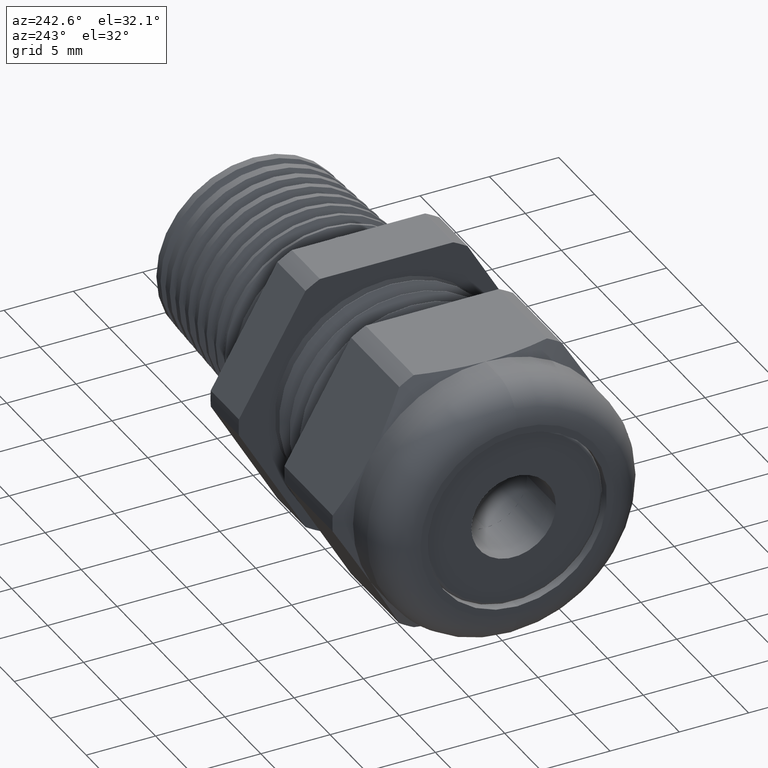
[diagram: clean part render]
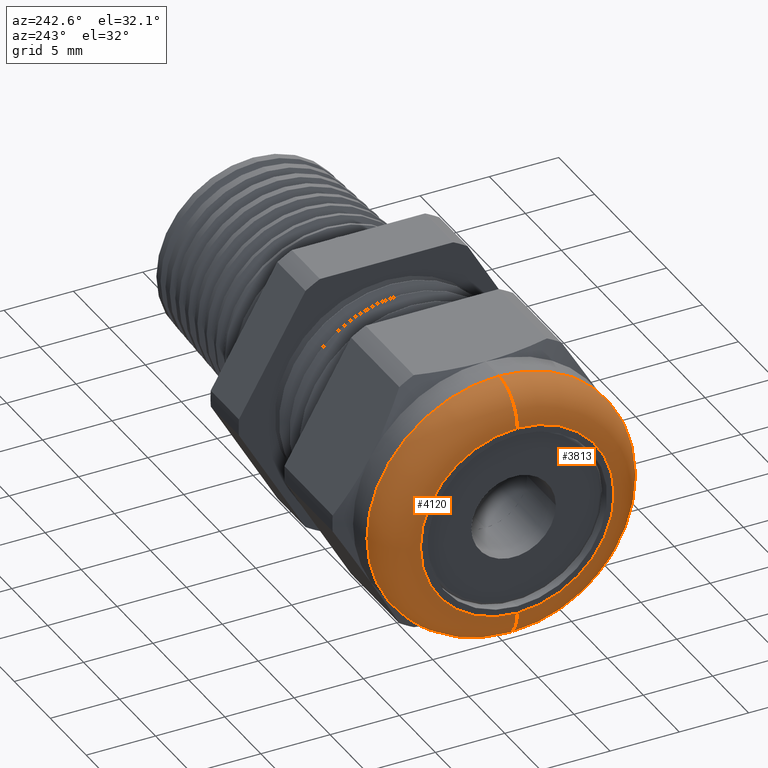
[diagram: same view with one multi-face feature highlighted, each face labeled with its STEP entity id]
A machine part, auxiliary view. The highlighted faces form ONE feature: a constant-radius fillet chain: 2 tangent blend faces with common blend radius 2.54 mm. The faces share edges in the B-rep.
Their STEP definitions:
[1] entity #4120 (Torus):
#94 = ORIENTED_EDGE ( 'NONE', *, *, #97, .F. ) ;
#97 = EDGE_CURVE ( 'NONE', #4122, #98, #2104, .T. ) ;
#98 = VERTEX_POINT ( 'NONE', #2103 ) ;
#99 = ORIENTED_EDGE ( 'NONE', *, *, #100, .T. ) ;
#100 = EDGE_CURVE ( 'NONE', #4122, #101, #1886, .T. ) ;
#101 = VERTEX_POINT ( 'NONE', #2114 ) ;
#1731 = CARTESIAN_POINT ( 'NONE',  ( -0.8700000000000000000, 3.979970649922724000E-017, 0.2749999999999998000 ) ) ;
#1736 = DIRECTION ( 'NONE',  ( 0.0000000000000000000, 0.0000000000000000000, -1.000000000000000000 ) ) ;
#1737 = DIRECTION ( 'NONE',  ( 1.000000000000000000, 0.0000000000000000000, 0.0000000000000000000 ) ) ;
#1738 = CARTESIAN_POINT ( 'NONE',  ( -0.7700000000000000200, 0.0000000000000000000, 0.0000000000000000000 ) ) ;
#1739 = AXIS2_PLACEMENT_3D ( 'NONE', #1738, #1737, #1736 ) ;
#1740 = TOROIDAL_SURFACE ( 'NONE', #1739, 0.2749999999999998000, 0.1000000000000000500 ) ;
#1742 = FACE_OUTER_BOUND ( 'NONE', #4117, .T. ) ;
#1769 = DIRECTION ( 'NONE',  ( 0.0000000000000000000, 0.0000000000000000000, -1.000000000000000000 ) ) ;
#1770 = DIRECTION ( 'NONE',  ( 0.0000000000000000000, -1.000000000000000000, 0.0000000000000000000 ) ) ;
#1771 = CARTESIAN_POINT ( 'NONE',  ( -0.7700000000000000200, 0.0000000000000000000, -0.2749999999999998000 ) ) ;
#1772 = AXIS2_PLACEMENT_3D ( 'NONE', #1771, #1770, #1769 ) ;
#1773 = CIRCLE ( 'NONE', #1772, 0.1000000000000000200 ) ;
#1774 = CARTESIAN_POINT ( 'NONE',  ( -0.7700000000000000200, 4.592273826833912300E-017, -0.3749999999999998300 ) ) ;
#1776 = DIRECTION ( 'NONE',  ( 0.0000000000000000000, 0.0000000000000000000, -1.000000000000000000 ) ) ;
#1777 = DIRECTION ( 'NONE',  ( 1.000000000000000000, 0.0000000000000000000, 0.0000000000000000000 ) ) ;
#1778 = CARTESIAN_POINT ( 'NONE',  ( -0.7700000000000000200, 0.0000000000000000000, 0.0000000000000000000 ) ) ;
#1779 = AXIS2_PLACEMENT_3D ( 'NONE', #1778, #1777, #1776 ) ;
#1780 = CIRCLE ( 'NONE', #1779, 0.3749999999999998300 ) ;
#1883 = AXIS2_PLACEMENT_3D ( 'NONE', #1885, #1884, #1887 ) ;
#1884 = DIRECTION ( 'NONE',  ( 0.0000000000000000000, 1.000000000000000000, -1.224606353822377300E-016 ) ) ;
#1885 = CARTESIAN_POINT ( 'NONE',  ( -0.7700000000000000200, 3.367667473011535100E-017, 0.2749999999999998000 ) ) ;
#1886 = CIRCLE ( 'NONE', #1883, 0.1000000000000000200 ) ;
#1887 = DIRECTION ( 'NONE',  ( 0.0000000000000000000, 1.224606353822377800E-016, 1.000000000000000000 ) ) ;
#2102 = DIRECTION ( 'NONE',  ( 0.0000000000000000000, 0.0000000000000000000, -1.000000000000000000 ) ) ;
#2103 = CARTESIAN_POINT ( 'NONE',  ( -0.8700000000000000000, 0.0000000000000000000, -0.2749999999999998000 ) ) ;
#2104 = CIRCLE ( 'NONE', #2106, 0.2749999999999998000 ) ;
#2105 = DIRECTION ( 'NONE',  ( -1.000000000000000000, -0.0000000000000000000, -0.0000000000000000000 ) ) ;
#2106 = AXIS2_PLACEMENT_3D ( 'NONE', #2107, #2105, #2102 ) ;
#2107 = CARTESIAN_POINT ( 'NONE',  ( -0.8700000000000000000, 0.0000000000000000000, 0.0000000000000000000 ) ) ;
#2114 = CARTESIAN_POINT ( 'NONE',  ( -0.7700000000000000200, 0.0000000000000000000, 0.3749999999999998300 ) ) ;
#4117 = EDGE_LOOP ( 'NONE', ( #94, #99, #4137, #4136 ) ) ;
#4120 = ADVANCED_FACE ( 'NONE', ( #1742 ), #1740, .T. ) ;
#4122 = VERTEX_POINT ( 'NONE', #1731 ) ;
#4136 = ORIENTED_EDGE ( 'NONE', *, *, #4142, .F. ) ;
#4137 = ORIENTED_EDGE ( 'NONE', *, *, #4139, .F. ) ;
#4139 = EDGE_CURVE ( 'NONE', #4141, #101, #1780, .T. ) ;
#4141 = VERTEX_POINT ( 'NONE', #1774 ) ;
#4142 = EDGE_CURVE ( 'NONE', #98, #4141, #1773, .T. ) ;
[2] entity #3813 (Torus):
#98 = VERTEX_POINT ( 'NONE', #2103 ) ;
#100 = EDGE_CURVE ( 'NONE', #4122, #101, #1886, .T. ) ;
#101 = VERTEX_POINT ( 'NONE', #2114 ) ;
#1235 = DIRECTION ( 'NONE',  ( 0.0000000000000000000, 0.0000000000000000000, -1.000000000000000000 ) ) ;
#1236 = DIRECTION ( 'NONE',  ( 1.000000000000000000, 0.0000000000000000000, 0.0000000000000000000 ) ) ;
#1237 = AXIS2_PLACEMENT_3D ( 'NONE', #1239, #1236, #1235 ) ;
#1239 = CARTESIAN_POINT ( 'NONE',  ( -0.7700000000000000200, 0.0000000000000000000, 0.0000000000000000000 ) ) ;
#1240 = TOROIDAL_SURFACE ( 'NONE', #1237, 0.2749999999999998000, 0.1000000000000000500 ) ;
#1241 = FACE_OUTER_BOUND ( 'NONE', #3814, .T. ) ;
#1265 = DIRECTION ( 'NONE',  ( 0.0000000000000000000, 0.0000000000000000000, -1.000000000000000000 ) ) ;
#1266 = DIRECTION ( 'NONE',  ( 1.000000000000000000, 0.0000000000000000000, 0.0000000000000000000 ) ) ;
#1267 = CARTESIAN_POINT ( 'NONE',  ( -0.7700000000000000200, 0.0000000000000000000, 0.0000000000000000000 ) ) ;
#1268 = AXIS2_PLACEMENT_3D ( 'NONE', #1267, #1266, #1265 ) ;
#1272 = CIRCLE ( 'NONE', #1268, 0.3749999999999998300 ) ;
#1394 = DIRECTION ( 'NONE',  ( 0.0000000000000000000, 0.0000000000000000000, -1.000000000000000000 ) ) ;
#1395 = DIRECTION ( 'NONE',  ( -1.000000000000000000, -0.0000000000000000000, -0.0000000000000000000 ) ) ;
#1396 = CARTESIAN_POINT ( 'NONE',  ( -0.8700000000000000000, 0.0000000000000000000, 0.0000000000000000000 ) ) ;
#1397 = AXIS2_PLACEMENT_3D ( 'NONE', #1396, #1395, #1394 ) ;
#1398 = CIRCLE ( 'NONE', #1397, 0.2749999999999998000 ) ;
#1731 = CARTESIAN_POINT ( 'NONE',  ( -0.8700000000000000000, 3.979970649922724000E-017, 0.2749999999999998000 ) ) ;
#1769 = DIRECTION ( 'NONE',  ( 0.0000000000000000000, 0.0000000000000000000, -1.000000000000000000 ) ) ;
#1770 = DIRECTION ( 'NONE',  ( 0.0000000000000000000, -1.000000000000000000, 0.0000000000000000000 ) ) ;
#1771 = CARTESIAN_POINT ( 'NONE',  ( -0.7700000000000000200, 0.0000000000000000000, -0.2749999999999998000 ) ) ;
#1772 = AXIS2_PLACEMENT_3D ( 'NONE', #1771, #1770, #1769 ) ;
#1773 = CIRCLE ( 'NONE', #1772, 0.1000000000000000200 ) ;
#1774 = CARTESIAN_POINT ( 'NONE',  ( -0.7700000000000000200, 4.592273826833912300E-017, -0.3749999999999998300 ) ) ;
#1883 = AXIS2_PLACEMENT_3D ( 'NONE', #1885, #1884, #1887 ) ;
#1884 = DIRECTION ( 'NONE',  ( 0.0000000000000000000, 1.000000000000000000, -1.224606353822377300E-016 ) ) ;
#1885 = CARTESIAN_POINT ( 'NONE',  ( -0.7700000000000000200, 3.367667473011535100E-017, 0.2749999999999998000 ) ) ;
#1886 = CIRCLE ( 'NONE', #1883, 0.1000000000000000200 ) ;
#1887 = DIRECTION ( 'NONE',  ( 0.0000000000000000000, 1.224606353822377800E-016, 1.000000000000000000 ) ) ;
#2103 = CARTESIAN_POINT ( 'NONE',  ( -0.8700000000000000000, 0.0000000000000000000, -0.2749999999999998000 ) ) ;
#2114 = CARTESIAN_POINT ( 'NONE',  ( -0.7700000000000000200, 0.0000000000000000000, 0.3749999999999998300 ) ) ;
#3813 = ADVANCED_FACE ( 'NONE', ( #1241 ), #1240, .T. ) ;
#3814 = EDGE_LOOP ( 'NONE', ( #3833, #3834, #3852, #3835 ) ) ;
#3833 = ORIENTED_EDGE ( 'NONE', *, *, #100, .F. ) ;
#3834 = ORIENTED_EDGE ( 'NONE', *, *, #3922, .F. ) ;
#3835 = ORIENTED_EDGE ( 'NONE', *, *, #3846, .F. ) ;
#3846 = EDGE_CURVE ( 'NONE', #101, #4141, #1272, .T. ) ;
#3852 = ORIENTED_EDGE ( 'NONE', *, *, #4142, .T. ) ;
#3922 = EDGE_CURVE ( 'NONE', #98, #4122, #1398, .T. ) ;
#4122 = VERTEX_POINT ( 'NONE', #1731 ) ;
#4141 = VERTEX_POINT ( 'NONE', #1774 ) ;
#4142 = EDGE_CURVE ( 'NONE', #98, #4141, #1773, .T. ) ;